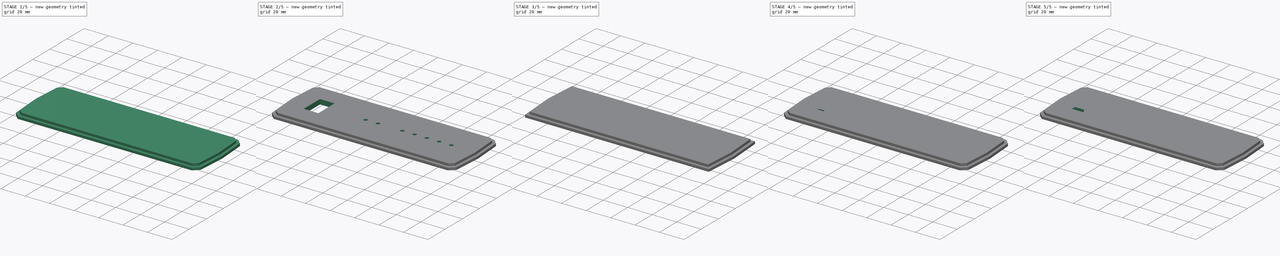
[diagram: build sequence overview — one tinted view per stage of 5, left to right]
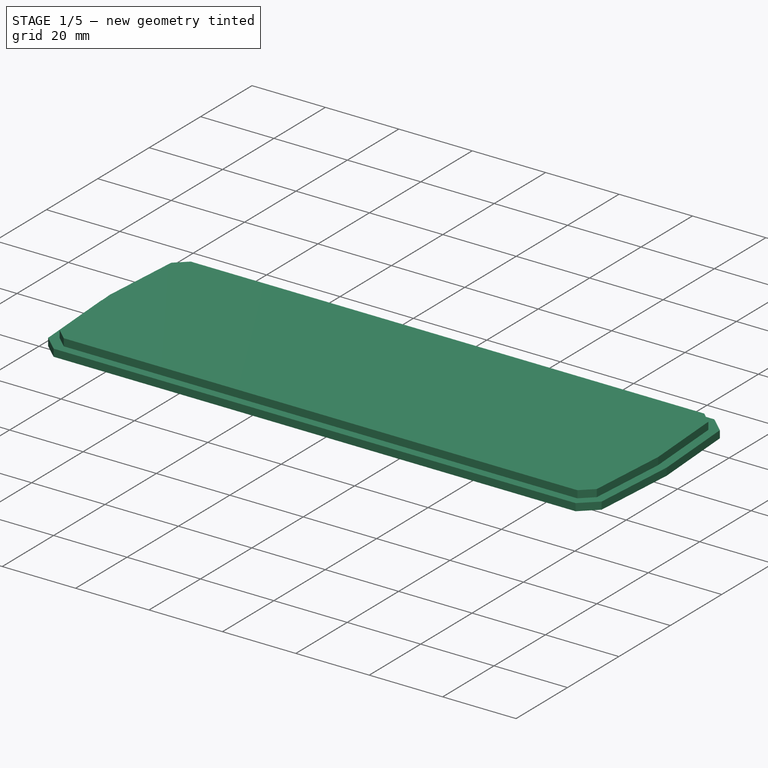
[diagram: stage 1 of 5 — iso view after this stage's code; geometry added in this stage tinted green]
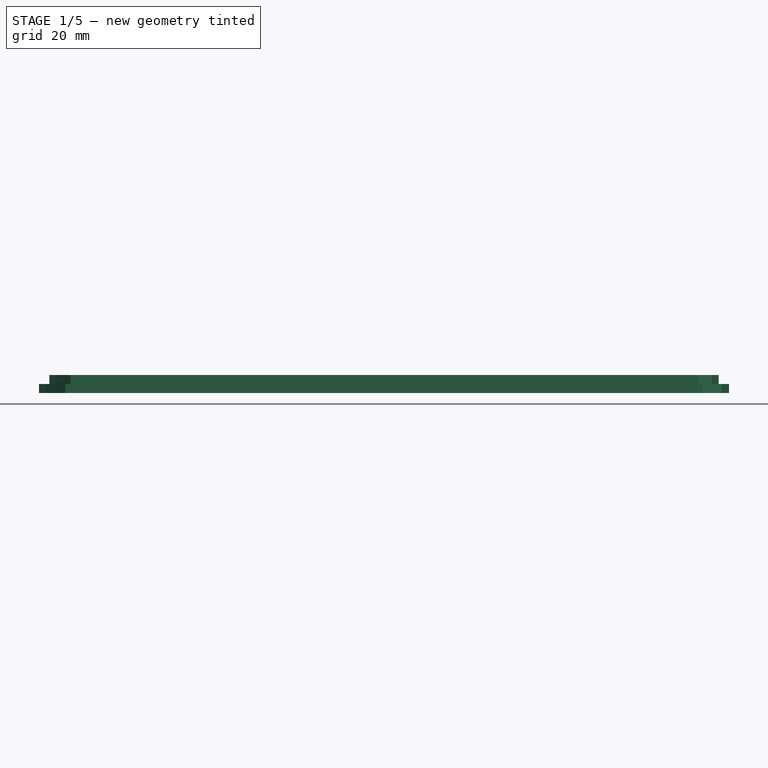
[diagram: stage 1 of 5 — front view after this stage's code; geometry added in this stage tinted green]
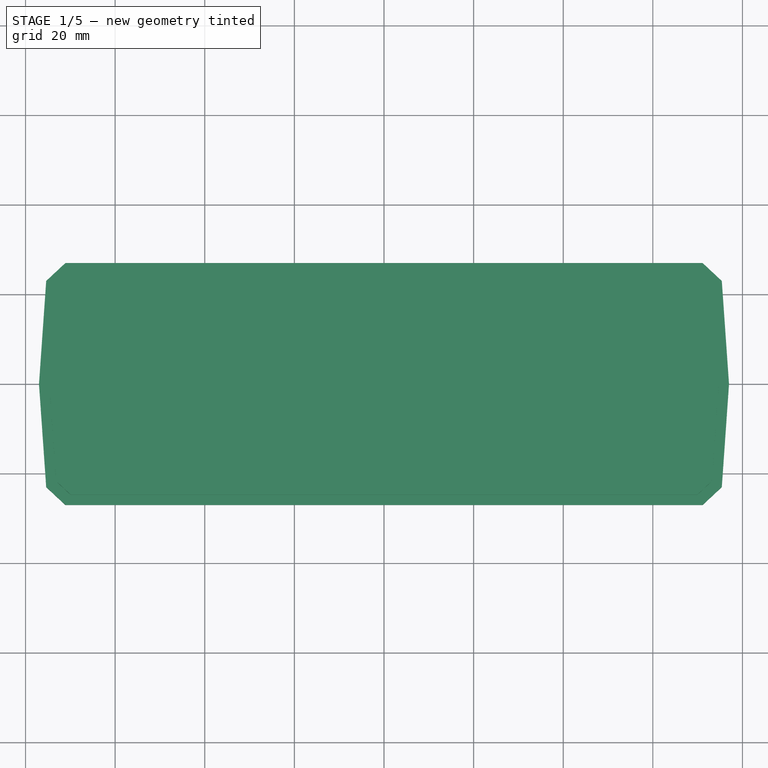
[diagram: stage 1 of 5 — top view after this stage's code; geometry added in this stage tinted green]
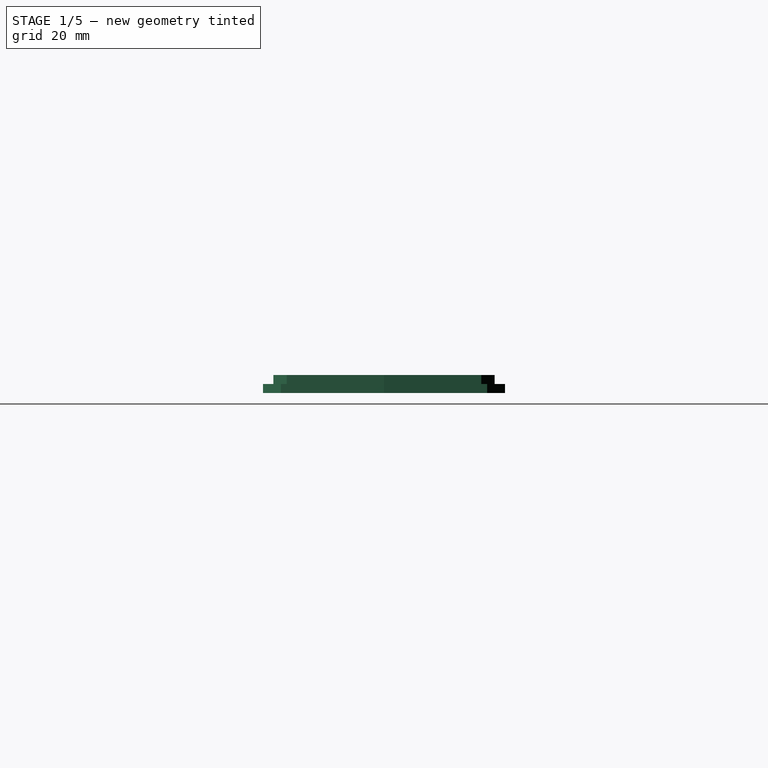
[diagram: stage 1 of 5 — right view after this stage's code; geometry added in this stage tinted green]
FCSTD DOCUMENT  (FreeCAD 1.1R20260414 (Git shallow))
Label: panel_sequencer
License: All rights reserved
LicenseURL: https://en.wikipedia.org/wiki/All_rights_reserved
objects: Sketcher::SketchObject×13, PartDesign::Pocket×11, PartDesign::LinearPattern×5, PartDesign::Chamfer×4, App::Point×2, PartDesign::Pad×2, PartDesign::Body×2, App::VarSet×1, PartDesign::Plane×1
note: 90 computed .brp shape members not serialized (recipe doc carries the construction recipe); baked Part::Feature solids carry a one-line shape summary decoded from their .brp

FEATURE [App::Point] Origin001  label="Počátek"
  Role = Origin
FEATURE [Sketcher::SketchObject] Sketch
  ArcFitTolerance = 1e-06
  AttachmentSupport = -> [Origin]
  ExternalTypes = [0]
  FullyConstrained = true
  MakeInternals = false
  MapMode = 5
  _ExternalGeoVersion = 1
  sketch-geometry (6):
    g0: LineSegment StartX=-77 StartY=0 StartZ=0 EndX=-75.112 EndY=27 EndZ=0
    g1: LineSegment StartX=-75.112 StartY=27 StartZ=0 EndX=75.112 EndY=27 EndZ=0
    g2: LineSegment StartX=75.112 StartY=27 StartZ=0 EndX=77 EndY=0 EndZ=0
    g3: LineSegment StartX=77 StartY=0 StartZ=0 EndX=75.112 EndY=-27 EndZ=0
    g4: LineSegment StartX=75.112 StartY=-27 StartZ=0 EndX=-75.112 EndY=-27 EndZ=0
    g5: LineSegment StartX=-75.112 StartY=-27 StartZ=0 EndX=-77 EndY=0 EndZ=0
  constraints (16):
    c: PointOnObject(g0,g-1)
    c: Coincident(g0,g1)
    c: Coincident(g1,g2)
    c: Coincident(g2,g3)
    c: Coincident(g3,g4)
    c: Horizontal(g4)
    c: Coincident(g4,g5)
    c: Coincident(g5,g0)
    c: Equal(g1,g4)
    c: Symmetric(g0,g1,g-2)
    c: Symmetric(g0,g2,g-2)
    c: Vertical(g0,g4)
    c: Equal(g0,g5)
    c: Distance(g4,g1) = 54
    c: DistanceX(g0,g2) = 154
    c: Angle(g-1,g0) = 1.50098
FEATURE [PartDesign::Pad] Pad
  Direction = (0,0,1)
  Length = 4
  Length2 = 10
  Profile = -> Sketch
  ReferenceAxis = -> Sketch [N_Axis]
  Refine = true
  SideType = 0
  Suppressed = false
  Type = 0
  Type2 = 0
FEATURE [Sketcher::SketchObject] Sketch001
  ArcFitTolerance = 1e-06
  AttachmentSupport = -> [Pad]
  ExternalGeometry = -> [Pad]
  ExternalTypes = [0,0,0,0,0,0]
  FullyConstrained = false
  MakeInternals = false
  MapMode = 5
  Placement = pos=(0,0,4) rot=(0,0,1;0rad)
  _ExternalGeoVersion = 1
  sketch-geometry (12):
    g0: LineSegment StartX=-72.9672 StartY=24.7 StartZ=0 EndX=72.9672 EndY=24.7 EndZ=0
    g1: LineSegment StartX=72.9672 StartY=24.7 StartZ=0 EndX=74.6944 EndY=4.62e-14 EndZ=0
    g2: LineSegment StartX=74.6944 StartY=4.62e-14 StartZ=0 EndX=72.9672 EndY=-24.7 EndZ=0
    g3: LineSegment StartX=72.9672 StartY=-24.7 StartZ=0 EndX=-72.9672 EndY=-24.7 EndZ=0
    g4: LineSegment StartX=-72.9672 StartY=-24.7 StartZ=0 EndX=-74.6944 EndY=3.2e-14 EndZ=0
    g5: LineSegment StartX=-74.6944 StartY=3.2e-14 StartZ=0 EndX=-72.9672 EndY=24.7 EndZ=0
    g6: LineSegment [constr] StartX=-71.6499 StartY=24.7 StartZ=0 EndX=-71.6499 EndY=27 EndZ=0
    g7: LineSegment [constr] StartX=72.9661 StartY=24.7158 StartZ=0 EndX=75.2605 EndY=24.8763 EndZ=0
    g8: LineSegment [constr] StartX=74.6856 StartY=-0.125518 StartZ=0 EndX=76.98 EndY=-0.285958 EndZ=0
    g9: LineSegment [constr] StartX=71.6499 StartY=-24.7 StartZ=0 EndX=71.6499 EndY=-27 EndZ=0
    g10: LineSegment [constr] StartX=-72.9661 StartY=-24.7158 StartZ=0 EndX=-75.2605 EndY=-24.8763 EndZ=0
    g11: LineSegment [constr] StartX=-74.6856 StartY=0.125522 StartZ=0 EndX=-76.98 EndY=0.285962 EndZ=0
  constraints (36):
    c: Coincident(g0,g1)
    c: Coincident(g0,g5)
    c: Coincident(g1,g2)
    c: Coincident(g2,g3)
    c: Coincident(g3,g4)
    c: Coincident(g4,g5)
    c: Perpendicular(g6,g0)
    c: PointOnObject(g6,g0)
    c: PointOnObject(g6,g-3)
    c: Perpendicular(g7,g1)
    c: PointOnObject(g7,g1)
    c: PointOnObject(g7,g-4)
    c: Perpendicular(g8,g2)
    c: PointOnObject(g8,g2)
    c: PointOnObject(g8,g-5)
    c: Perpendicular(g9,g3)
    c: PointOnObject(g9,g3)
    c: PointOnObject(g9,g-6)
    c: Perpendicular(g10,g4)
    c: PointOnObject(g10,g4)
    c: PointOnObject(g10,g-7)
    c: Perpendicular(g11,g5)
    c: PointOnObject(g11,g5)
    c: PointOnObject(g11,g-8)
    c: Parallel(g5,g-8)
    c: Parallel(g0,g-3)
    c: Parallel(g1,g-4)
    c: Equal(g7,g6)
    c: Parallel(g2,g-5)
    c: Equal(g8,g6)
    c: Parallel(g3,g-6)
    c: Equal(g9,g6)
    c: Parallel(g4,g-7)
    c: Equal(g10,g6)
    c: Equal(g11,g6)
    c: Distance(g6) = 2.3
FEATURE [PartDesign::Pocket] Pocket
  BaseFeature = -> Pad
  Direction = (0,0,-1)
  Length = 2
  Length2 = 5
  Profile = -> Sketch001
  ReferenceAxis = -> Sketch001 [N_Axis]
  Refine = true
  SideType = 0
  Suppressed = false
  Type = 0
  Type2 = 0
FEATURE [PartDesign::Chamfer] Chamfer
  Angle = 45
  Base = -> Pocket [Edge32,Edge25,Edge26,Edge30]
  BaseFeature = -> Pocket
  ChamferType = 0
  FlipDirection = false
  Refine = true
  Size = 3
  Size2 = 1
  SupportTransform = false
  Suppressed = false
  UseAllEdges = false
FEATURE [PartDesign::Chamfer] Chamfer001
  Angle = 45
  Base = -> Chamfer [Edge43,Edge38,Edge39,Edge45]
  BaseFeature = -> Chamfer
  ChamferType = 0
  FlipDirection = false
  Refine = true
  Size = 4
  Size2 = 1
  SupportTransform = false
  Suppressed = false
  UseAllEdges = false
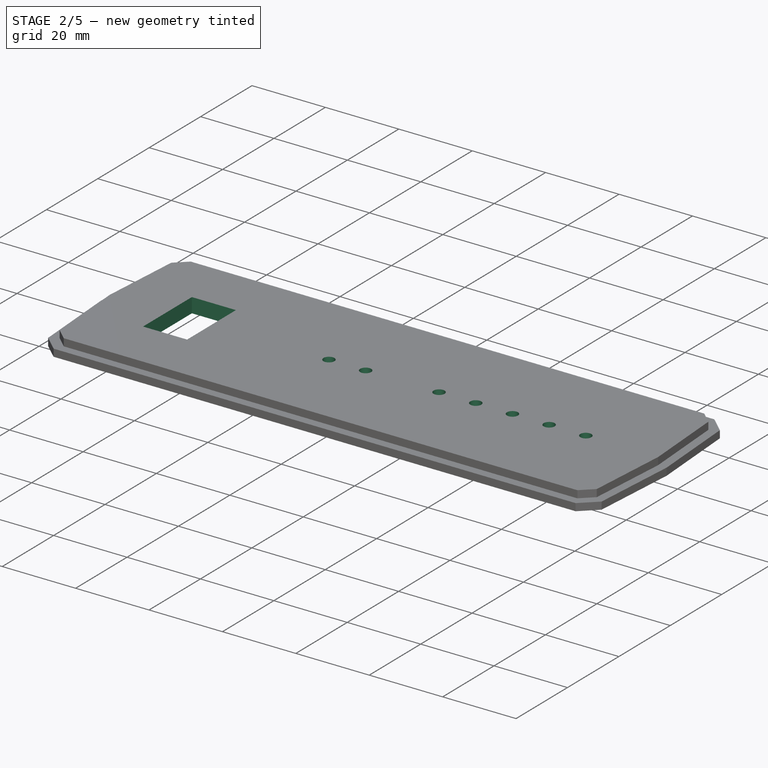
[diagram: stage 2 of 5 — iso view after this stage's code; geometry added in this stage tinted green]
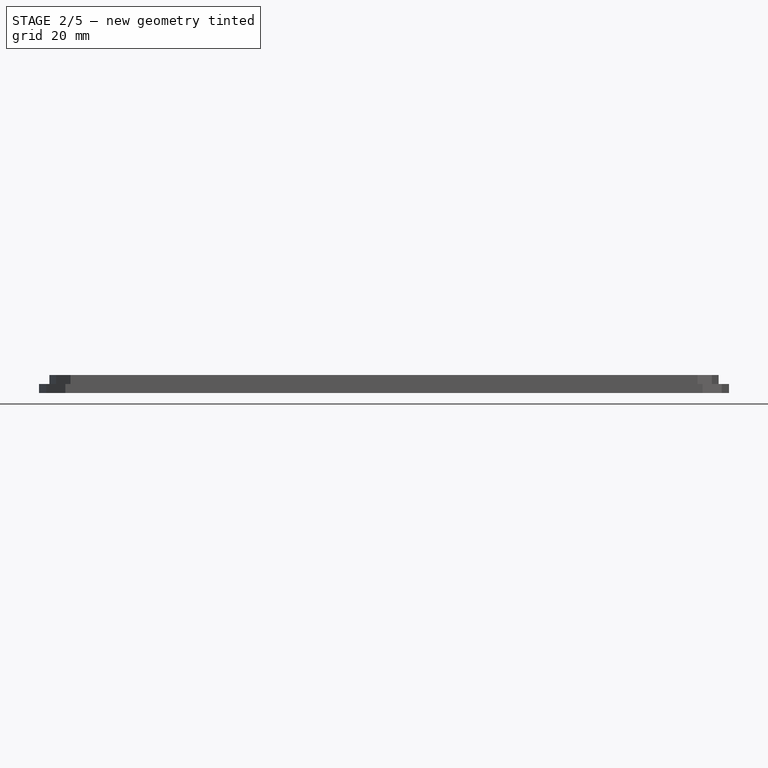
[diagram: stage 2 of 5 — front view after this stage's code; geometry added in this stage tinted green]
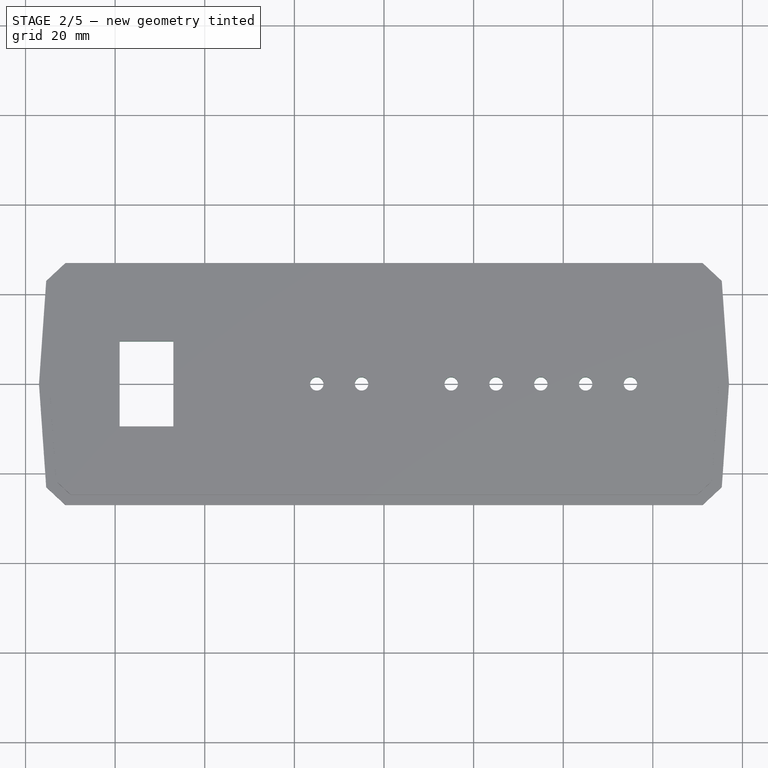
[diagram: stage 2 of 5 — top view after this stage's code; geometry added in this stage tinted green]
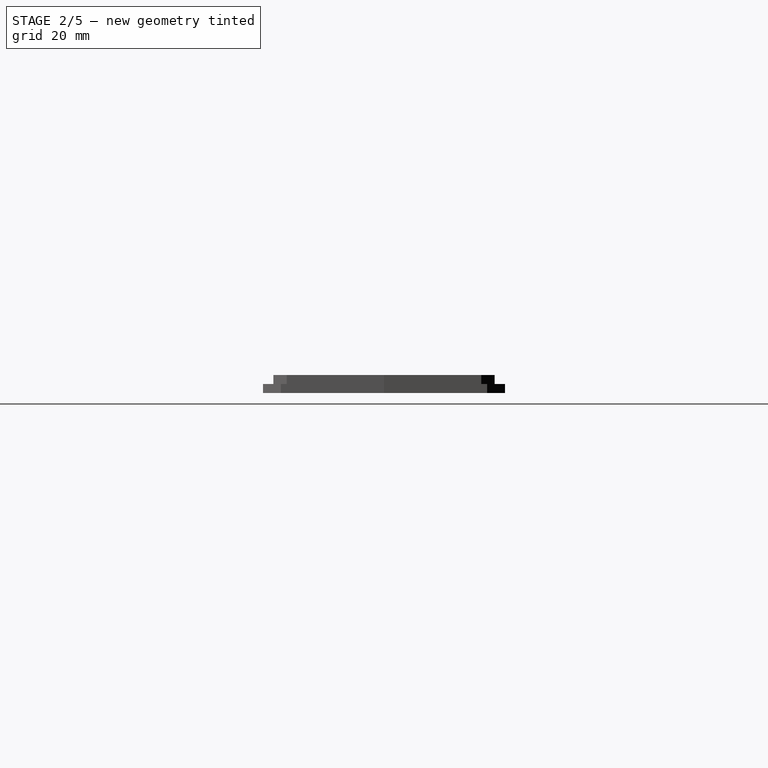
[diagram: stage 2 of 5 — right view after this stage's code; geometry added in this stage tinted green]
FEATURE [Sketcher::SketchObject] Sketch004
  ArcFitTolerance = 1e-06
  AttachmentSupport = -> [Chamfer001]
  ExternalGeometry = -> [Chamfer001]
  ExternalTypes = [0,0]
  FullyConstrained = true
  MakeInternals = false
  MapMode = 5
  Placement = pos=(0,0,4) rot=(0,0,1;0rad)
  _ExternalGeoVersion = 1
  sketch-geometry (4):
    g0: LineSegment StartX=-59 StartY=9.5 StartZ=0 EndX=-59 EndY=-9.5 EndZ=0
    g1: LineSegment StartX=-59 StartY=-9.5 StartZ=0 EndX=-47 EndY=-9.5 EndZ=0
    g2: LineSegment StartX=-47 StartY=-9.5 StartZ=0 EndX=-47 EndY=9.5 EndZ=0
    g3: LineSegment StartX=-47 StartY=9.5 StartZ=0 EndX=-59 EndY=9.5 EndZ=0
  constraints (11):
    c: Coincident(g0,g1)
    c: Coincident(g1,g2)
    c: Coincident(g2,g3)
    c: Coincident(g3,g0)
    c: Vertical(g0)
    c: Horizontal(g1)
    c: Horizontal(g3)
    c: Distance(g0,g2) = 12
    c: Distance(g1,g3) = 19
    c: Distance(g-3,g0) = 18
    c: Symmetric(g2,g1,g-1)
FEATURE [PartDesign::Pocket] Pocket002  label="vypinac"
  BaseFeature = -> Chamfer001
  Direction = (0,0,-1)
  Length = 5
  Length2 = 5
  Profile = -> Sketch004
  ReferenceAxis = -> Sketch004 [N_Axis]
  Refine = true
  SideType = 0
  Suppressed = false
  Type = 0
  Type2 = 0
FEATURE [Sketcher::SketchObject] Sketch005
  ArcFitTolerance = 1e-06
  AttachmentSupport = -> [Pocket002]
  ExternalGeometry = -> [Pocket002]
  ExternalTypes = [0]
  FullyConstrained = true
  MakeInternals = false
  MapMode = 5
  Placement = pos=(0,0,4) rot=(0,0,1;0rad)
  _ExternalGeoVersion = 1
  sketch-geometry (1):
    g0: Circle CenterX=55 CenterY=0 CenterZ=0 NormalX=0 NormalY=0 NormalZ=1 AngleXU=0 Radius=1.5
  constraints (3):
    c: Diameter(g0) = 3
    c: PointOnObject(g0,g-1)
    c: DistanceX(g0,g-3) = 22
FEATURE [PartDesign::Pocket] Pocket003  label="led TX"
  BaseFeature = -> Pocket002
  Direction = (0,0,-1)
  Length = 5
  Length2 = 5
  Profile = -> Sketch005
  ReferenceAxis = -> Sketch005 [N_Axis]
  Refine = true
  SideType = 0
  Suppressed = false
  Type = 0
  Type2 = 0
FEATURE [PartDesign::LinearPattern] LinearPattern
  BaseFeature = -> Pocket003
  Direction = -> X_Axis
  Direction2 = -> X_Axis
  Length = 40
  Length2 = 100
  Mode = 1
  Mode2 = 0
  Occurrences = 5
  Occurrences2 = 1
  Offset = 10
  Offset2 = 100
  Originals = -> [Pocket003]
  Refine = true
  Reversed = true
  Reversed2 = false
  SpacingPattern = [10]
  SpacingPattern2 = [0]
  Spacings = [-1,-1,-1,-1]
  Suppressed = false
  TransformMode = 0
FEATURE [Sketcher::SketchObject] Sketch006
  ArcFitTolerance = 1e-06
  AttachmentSupport = -> [LinearPattern]
  ExternalTypes = [0]
  FullyConstrained = true
  MakeInternals = false
  MapMode = 5
  Placement = pos=(0,0,4) rot=(0,0,1;0rad)
  _ExternalGeoVersion = 1
  sketch-geometry (1):
    g0: Circle CenterX=-5 CenterY=0 CenterZ=0 NormalX=0 NormalY=0 NormalZ=1 AngleXU=0 Radius=1.5
  constraints (3):
    c: Diameter(g0) = 3
    c: PointOnObject(g0,g-1)
    c: DistanceX(g0,g-1) = 5
FEATURE [PartDesign::Pocket] Pocket004  label="led LNA"
  BaseFeature = -> LinearPattern
  Direction = (0,0,-1)
  Length = 5
  Length2 = 5
  Profile = -> Sketch006
  ReferenceAxis = -> Sketch006 [N_Axis]
  Refine = true
  SideType = 0
  Suppressed = false
  Type = 0
  Type2 = 0
FEATURE [PartDesign::LinearPattern] LinearPattern001
  BaseFeature = -> Pocket004
  Direction = -> X_Axis
  Direction2 = -> X_Axis
  Length = 10
  Length2 = 100
  Mode = 1
  Mode2 = 0
  Occurrences = 2
  Occurrences2 = 1
  Offset = 10
  Offset2 = 100
  Originals = -> [Pocket004]
  Refine = true
  Reversed = true
  Reversed2 = false
  SpacingPattern = [10]
  SpacingPattern2 = [0]
  Spacings = [-1]
  Suppressed = false
  TransformMode = 0
  expr: Occurrences = VarSet.LNA
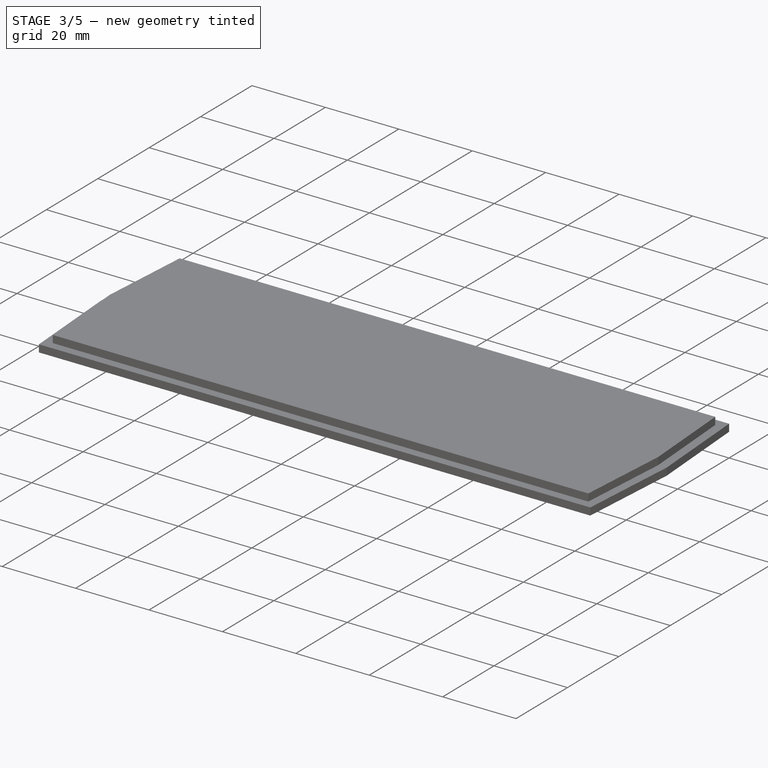
[diagram: stage 3 of 5 — iso view after this stage's code; geometry added in this stage tinted green]
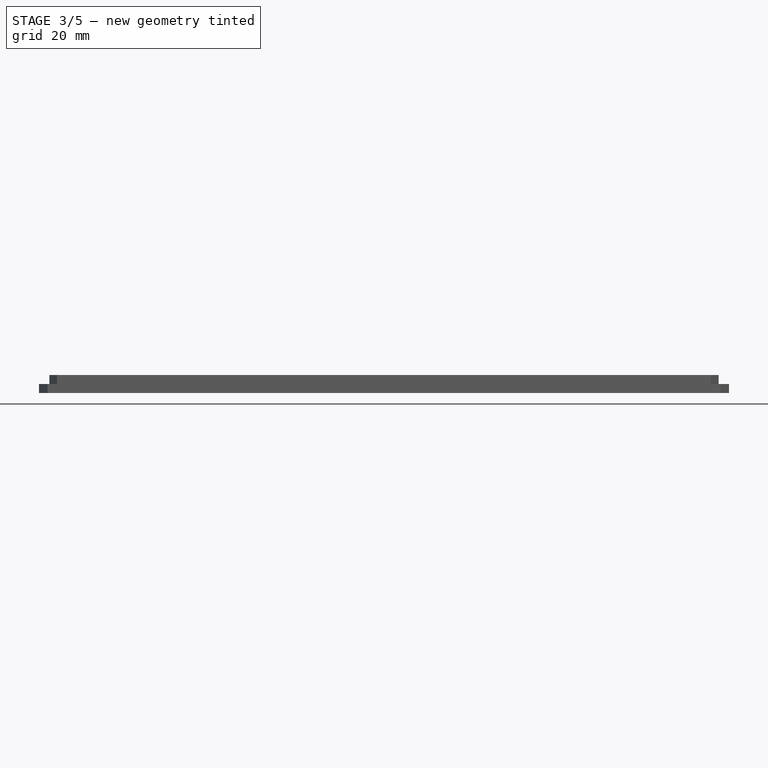
[diagram: stage 3 of 5 — front view after this stage's code; geometry added in this stage tinted green]
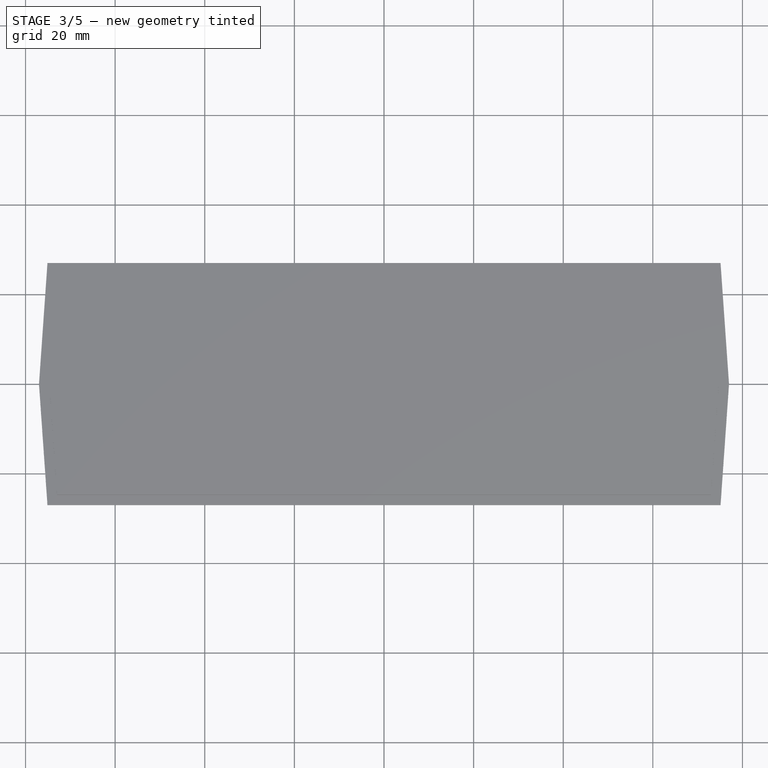
[diagram: stage 3 of 5 — top view after this stage's code; geometry added in this stage tinted green]
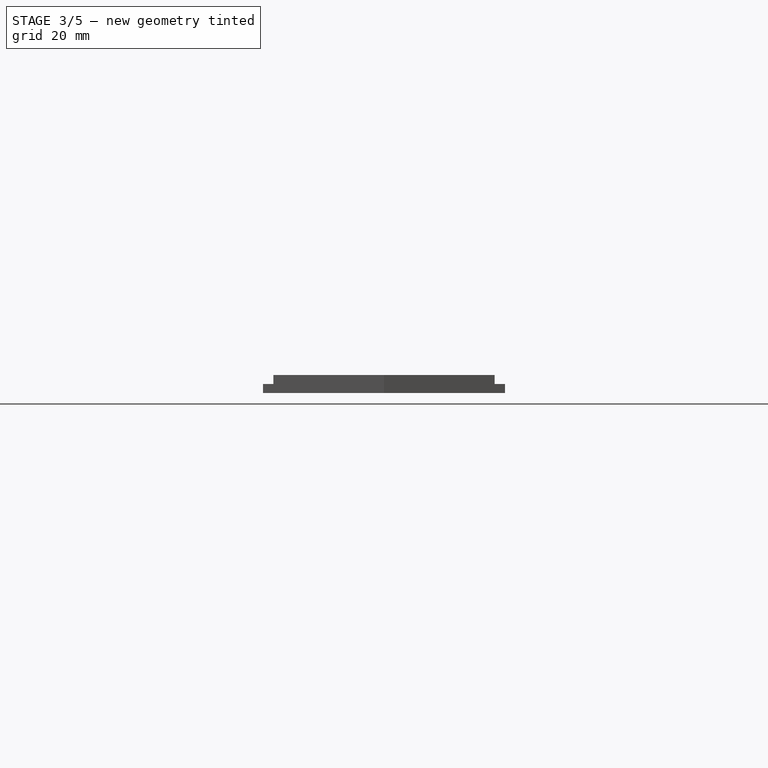
[diagram: stage 3 of 5 — right view after this stage's code; geometry added in this stage tinted green]
FEATURE [App::Point] Origin003  label="Počátek003"
  Role = Origin
FEATURE [Sketcher::SketchObject] Sketch002
  ArcFitTolerance = 1e-06
  AttachmentSupport = -> [Origin002]
  ExternalTypes = [0]
  FullyConstrained = true
  MakeInternals = false
  MapMode = 5
  _ExternalGeoVersion = 1
  sketch-geometry (6):
    g0: LineSegment StartX=-77 StartY=0 StartZ=0 EndX=-75.112 EndY=27 EndZ=0
    g1: LineSegment StartX=-75.112 StartY=27 StartZ=0 EndX=75.112 EndY=27 EndZ=0
    g2: LineSegment StartX=75.112 StartY=27 StartZ=0 EndX=77 EndY=0 EndZ=0
    g3: LineSegment StartX=77 StartY=0 StartZ=0 EndX=75.112 EndY=-27 EndZ=0
    g4: LineSegment StartX=75.112 StartY=-27 StartZ=0 EndX=-75.112 EndY=-27 EndZ=0
    g5: LineSegment StartX=-75.112 StartY=-27 StartZ=0 EndX=-77 EndY=0 EndZ=0
  constraints (16):
    c: PointOnObject(g0,g-1)
    c: Coincident(g0,g1)
    c: Coincident(g1,g2)
    c: Coincident(g2,g3)
    c: Coincident(g3,g4)
    c: Horizontal(g4)
    c: Coincident(g4,g5)
    c: Coincident(g5,g0)
    c: Equal(g1,g4)
    c: Symmetric(g0,g1,g-2)
    c: Symmetric(g0,g2,g-2)
    c: Vertical(g0,g4)
    c: Equal(g0,g5)
    c: Distance(g4,g1) = 54
    c: DistanceX(g0,g2) = 154
    c: Angle(g-1,g0) = 1.50098
FEATURE [PartDesign::Pad] Pad001
  Direction = (0,0,1)
  Length = 4
  Length2 = 10
  Profile = -> Sketch002
  ReferenceAxis = -> Sketch002 [N_Axis]
  Refine = true
  SideType = 0
  Suppressed = false
  Type = 0
  Type2 = 0
FEATURE [Sketcher::SketchObject] Sketch003
  ArcFitTolerance = 1e-06
  AttachmentSupport = -> [Pad001]
  ExternalGeometry = -> [Pad001]
  ExternalTypes = [0,0,0,0,0,0]
  FullyConstrained = false
  MakeInternals = false
  MapMode = 5
  Placement = pos=(0,0,4) rot=(0,0,1;0rad)
  _ExternalGeoVersion = 1
  sketch-geometry (12):
    g0: LineSegment StartX=-72.9672 StartY=24.7 StartZ=0 EndX=72.9672 EndY=24.7 EndZ=0
    g1: LineSegment StartX=72.9672 StartY=24.7 StartZ=0 EndX=74.6944 EndY=-2.65672e-11 EndZ=0
    g2: LineSegment StartX=74.6944 StartY=-2.65672e-11 StartZ=0 EndX=72.9672 EndY=-24.7 EndZ=0
    g3: LineSegment StartX=72.9672 StartY=-24.7 StartZ=0 EndX=-72.9672 EndY=-24.7 EndZ=0
    g4: LineSegment StartX=-72.9672 StartY=-24.7 StartZ=0 EndX=-74.6944 EndY=2.63931e-11 EndZ=0
    g5: LineSegment StartX=-74.6944 StartY=2.63931e-11 StartZ=0 EndX=-72.9672 EndY=24.7 EndZ=0
    g6: LineSegment [constr] StartX=-71.6499 StartY=24.7 StartZ=0 EndX=-71.6499 EndY=27 EndZ=0
    g7: LineSegment [constr] StartX=72.9663 StartY=24.7123 StartZ=0 EndX=75.2607 EndY=24.8728 EndZ=0
    g8: LineSegment [constr] StartX=74.6856 StartY=-0.125095 StartZ=0 EndX=76.98 EndY=-0.285535 EndZ=0
    g9: LineSegment [constr] StartX=71.6499 StartY=-24.7 StartZ=0 EndX=71.6499 EndY=-27 EndZ=0
    g10: LineSegment [constr] StartX=-72.9668 StartY=-24.7051 StartZ=0 EndX=-75.2612 EndY=-24.8655 EndZ=0
    g11: LineSegment [constr] StartX=-74.6855 StartY=0.126875 StartZ=0 EndX=-76.9799 EndY=0.287315 EndZ=0
  constraints (36):
    c: Coincident(g0,g1)
    c: Coincident(g0,g5)
    c: Coincident(g1,g2)
    c: Coincident(g2,g3)
    c: Coincident(g3,g4)
    c: Coincident(g4,g5)
    c: Perpendicular(g6,g0)
    c: PointOnObject(g6,g0)
    c: PointOnObject(g6,g-3)
    c: Perpendicular(g7,g1)
    c: PointOnObject(g7,g1)
    c: PointOnObject(g7,g-4)
    c: Perpendicular(g8,g2)
    c: PointOnObject(g8,g2)
    c: PointOnObject(g8,g-5)
    c: Perpendicular(g9,g3)
    c: PointOnObject(g9,g3)
    c: PointOnObject(g9,g-6)
    c: Perpendicular(g10,g4)
    c: PointOnObject(g10,g4)
    c: PointOnObject(g10,g-7)
    c: Perpendicular(g11,g5)
    c: PointOnObject(g11,g5)
    c: PointOnObject(g11,g-8)
    c: Parallel(g5,g-8)
    c: Parallel(g0,g-3)
    c: Parallel(g1,g-4)
    c: Equal(g7,g6)
    c: Parallel(g2,g-5)
    c: Equal(g8,g6)
    c: Parallel(g3,g-6)
    c: Equal(g9,g6)
    c: Parallel(g4,g-7)
    c: Equal(g10,g6)
    c: Equal(g11,g6)
    c: Distance(g6) = 2.3
FEATURE [PartDesign::Pocket] Pocket001
  BaseFeature = -> Pad001
  Direction = (0,0,-1)
  Length = 2
  Length2 = 5
  Profile = -> Sketch003
  ReferenceAxis = -> Sketch003 [N_Axis]
  Refine = true
  SideType = 0
  Suppressed = false
  Type = 0
  Type2 = 0
FEATURE [Sketcher::SketchObject] Sketch011
  ArcFitTolerance = 1e-06
  AttachmentSupport = -> [LinearPattern001]
  ExternalGeometry = -> [LinearPattern001]
  ExternalTypes = [0]
  FullyConstrained = true
  MakeInternals = false
  MapMode = 5
  Placement = pos=(0,0,4) rot=(0,0,1;0rad)
  _ExternalGeoVersion = 1
  sketch-geometry (2):
    g0: Circle CenterX=-53 CenterY=17.5 CenterZ=0 NormalX=0 NormalY=0 NormalZ=1 AngleXU=0 Radius=1.5
    g1: LineSegment [constr] StartX=-53 StartY=17.5 StartZ=0 EndX=-53 EndY=9.5 EndZ=0
  constraints (5):
    c: Diameter(g0) = 3
    c: Coincident(g1,g0)
    c: Symmetric(g-3,g-3,g1)
    c: Vertical(g1)
    c: DistanceY(g1,g1) = 8
FEATURE [PartDesign::Pocket] Pocket009  label="led PWR"
  BaseFeature = -> LinearPattern001
  Direction = (0,0,-1)
  Length = 5
  Length2 = 5
  Profile = -> Sketch011
  ReferenceAxis = -> Sketch011 [N_Axis]
  Refine = true
  SideType = 0
  Suppressed = false
  Type = 0
  Type2 = 0
FEATURE [App::VarSet] VarSet
  DC = 2
  LNA = 2
FEATURE [PartDesign::Plane] DatumPlane
  AttachmentOffset = pos=(0,0,6) rot=(0,0,1;0rad)
  AttachmentSupport = -> [Pocket009]
  Length = 64.3923
  MapMode = 5
  Placement = pos=(-53,0,0) rot=(0.57735,-0.57735,-0.57735;2.0944rad)
  ResizeMode = 0
  Width = 60.3923
FEATURE [Sketcher::SketchObject] Sketch015
  ArcFitTolerance = 1e-06
  AttachmentSupport = -> [DatumPlane]
  ExternalGeometry = -> [Pocket009]
  ExternalTypes = [0]
  FullyConstrained = true
  MakeInternals = false
  MapMode = 5
  Placement = pos=(-53,0,0) rot=(0.57735,-0.57735,-0.57735;2.0944rad)
  _ExternalGeoVersion = 1
  sketch-geometry (8):
    g0: LineSegment StartX=-9.5 StartY=0 StartZ=0 EndX=-9.5 EndY=3 EndZ=0
    g1: LineSegment StartX=-9.5 StartY=3 StartZ=0 EndX=-10.75 EndY=1.75 EndZ=0
    g2: LineSegment StartX=-10.75 StartY=1.75 StartZ=0 EndX=-10.75 EndY=0 EndZ=0
    g3: LineSegment StartX=-10.75 StartY=0 StartZ=0 EndX=-9.5 EndY=0 EndZ=0
    g4: LineSegment StartX=9.5 StartY=0 StartZ=0 EndX=9.5 EndY=3 EndZ=0
    g5: LineSegment StartX=9.5 StartY=3 StartZ=0 EndX=10.75 EndY=1.75 EndZ=0
    g6: LineSegment StartX=10.75 StartY=1.75 StartZ=0 EndX=10.75 EndY=0 EndZ=0
    g7: LineSegment StartX=10.75 StartY=0 StartZ=0 EndX=9.5 EndY=0 EndZ=0
  constraints (19):
    c: Coincident(g-3,g0)
    c: PointOnObject(g0,g-3)
    c: Coincident(g0,g1)
    c: Coincident(g1,g2)
    c: PointOnObject(g2,g-1)
    c: Vertical(g2)
    c: Coincident(g2,g3)
    c: Coincident(g3,g0)
    c: Symmetric(g0,g4,g-2)
    c: Symmetric(g0,g4,g-2)
    c: Symmetric(g1,g5,g-2)
    c: Symmetric(g1,g5,g-2)
    c: Symmetric(g2,g6,g-2)
    c: Symmetric(g2,g6,g-2)
    c: Symmetric(g3,g7,g-2)
    c: Symmetric(g3,g7,g-2)
    c: DistanceX(g2,g6) = 21.5
    c: Distance(g0,g-3) = 1
    c: Angle(g2,g1) = 2.35619
FEATURE [PartDesign::Pocket] Pocket013
  BaseFeature = -> Pocket009
  Direction = (1,0,0)
  Length = 7
  Length2 = 5
  Profile = -> Sketch015
  ReferenceAxis = -> Sketch015 [N_Axis]
  Refine = true
  SideType = 2
  Suppressed = false
  Type = 0
  Type2 = 0
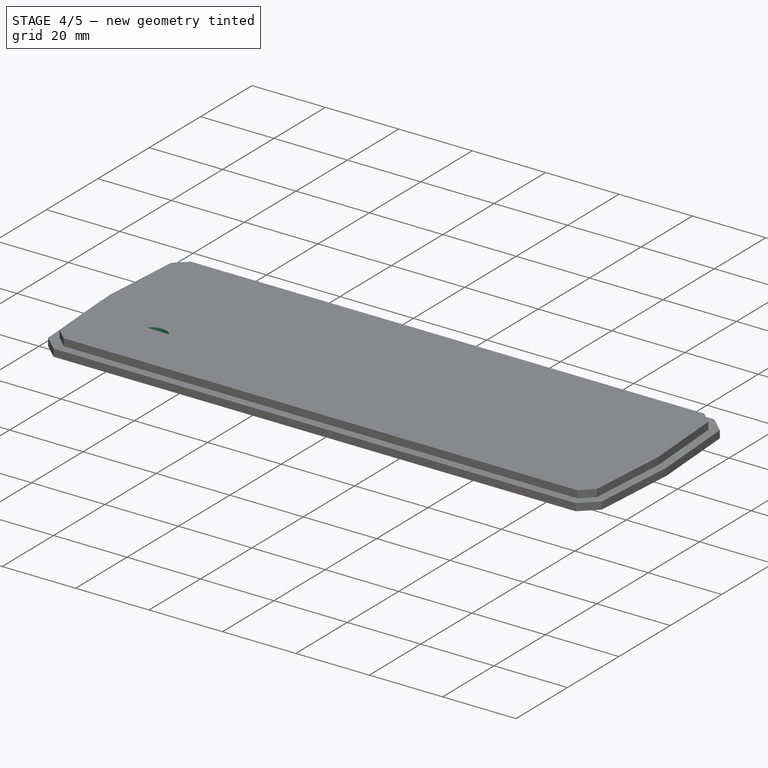
[diagram: stage 4 of 5 — iso view after this stage's code; geometry added in this stage tinted green]
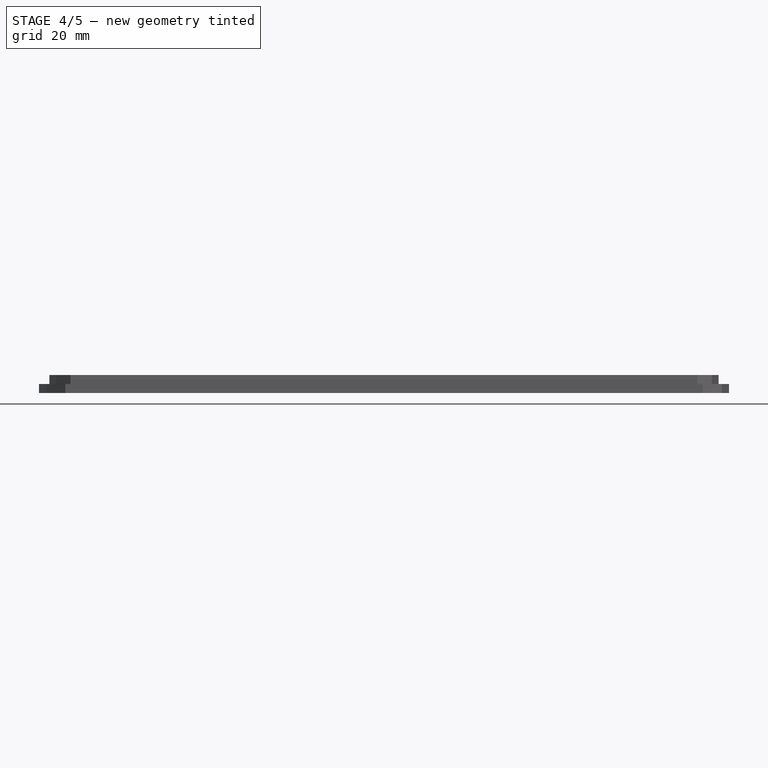
[diagram: stage 4 of 5 — front view after this stage's code; geometry added in this stage tinted green]
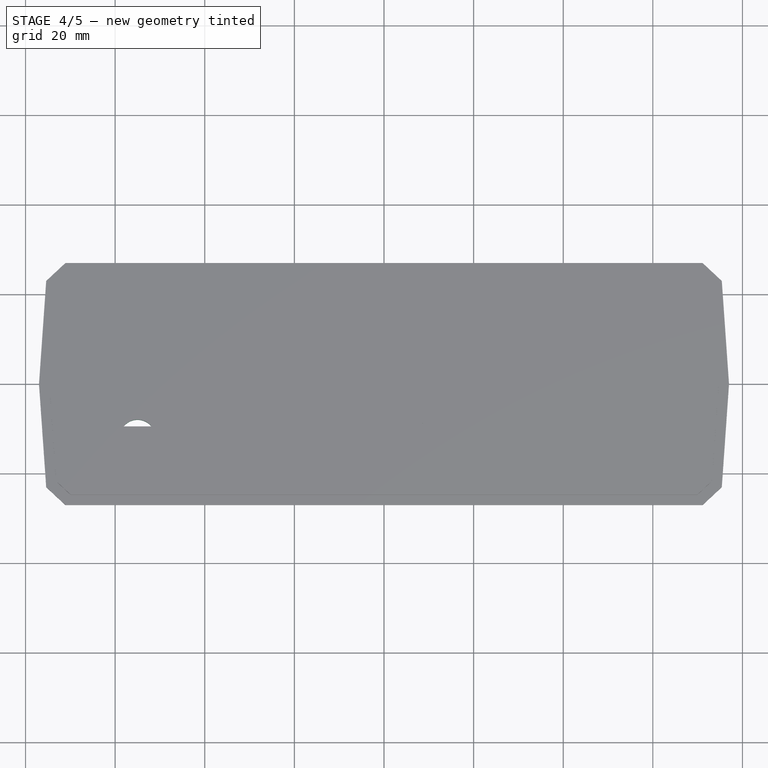
[diagram: stage 4 of 5 — top view after this stage's code; geometry added in this stage tinted green]
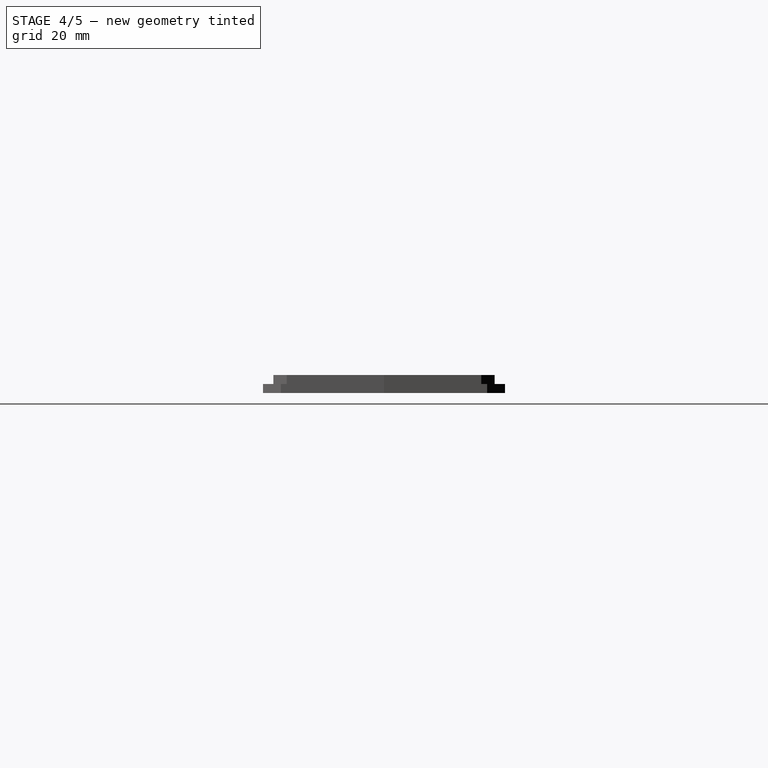
[diagram: stage 4 of 5 — right view after this stage's code; geometry added in this stage tinted green]
FEATURE [PartDesign::Chamfer] Chamfer002
  Angle = 45
  Base = -> Pocket001 [Edge32,Edge25,Edge26,Edge30]
  BaseFeature = -> Pocket001
  ChamferType = 0
  FlipDirection = false
  Refine = true
  Size = 3
  Size2 = 1
  SupportTransform = false
  Suppressed = false
  UseAllEdges = false
FEATURE [PartDesign::Chamfer] Chamfer003
  Angle = 45
  Base = -> Chamfer002 [Edge43,Edge38,Edge39,Edge45]
  BaseFeature = -> Chamfer002
  ChamferType = 0
  FlipDirection = false
  Refine = true
  Size = 4
  Size2 = 1
  SupportTransform = false
  Suppressed = false
  UseAllEdges = false
FEATURE [Sketcher::SketchObject] Sketch007
  ArcFitTolerance = 1e-06
  AttachmentSupport = -> [Chamfer003]
  ExternalGeometry = -> [Chamfer003]
  ExternalTypes = [0]
  FullyConstrained = true
  MakeInternals = false
  MapMode = 5
  Placement = pos=(0,0,4) rot=(0,0,1;0rad)
  _ExternalGeoVersion = 1
  sketch-geometry (7):
    g0: Circle CenterX=-55 CenterY=-12 CenterZ=0 NormalX=0 NormalY=0 NormalZ=1 AngleXU=0 Radius=4
    g1: GeomPoint [constr] X=-59 Y=-12 Z=0
    g2: Circle CenterX=-33 CenterY=-12 CenterZ=0 NormalX=0 NormalY=0 NormalZ=1 AngleXU=0 Radius=4
    g3: Circle CenterX=-11 CenterY=-12 CenterZ=0 NormalX=0 NormalY=0 NormalZ=1 AngleXU=0 Radius=4
    g4: Circle CenterX=11 CenterY=-12 CenterZ=0 NormalX=0 NormalY=0 NormalZ=1 AngleXU=0 Radius=4
    g5: Circle CenterX=33 CenterY=-12 CenterZ=0 NormalX=0 NormalY=0 NormalZ=1 AngleXU=0 Radius=4
    g6: Circle CenterX=55 CenterY=-12 CenterZ=0 NormalX=0 NormalY=0 NormalZ=1 AngleXU=0 Radius=4
  constraints (16):
    c: Diameter(g0) = 8
    c: PointOnObject(g1,g0)
    c: Horizontal(g0,g1)
    c: DistanceX(g-3,g1) = 18
    c: Distance(g0,g-1) = 12
    c: Equal(g0, g2-g6) x5
    c: Horizontal(g2,g1)
    c: Horizontal(g3,g1)
    c: Horizontal(g4,g1)
    c: Horizontal(g5,g1)
    c: Horizontal(g6,g1)
    c: DistanceX(g0,g2) = 22
    c: DistanceX(g2,g3) = 22
    c: DistanceX(g3,g4) = 22
    c: DistanceX(g4,g5) = 22
    c: DistanceX(g5,g6) = 22
FEATURE [PartDesign::Pocket] Pocket005  label="RCA - ( PTT )"
  BaseFeature = -> Chamfer003
  Direction = (0,0,-1)
  Length = 5
  Length2 = 5
  Profile = -> Sketch007
  ReferenceAxis = -> Sketch007 [N_Axis]
  Refine = true
  SideType = 0
  Suppressed = false
  Type = 0
  Type2 = 0
FEATURE [Sketcher::SketchObject] Sketch009
  ArcFitTolerance = 1e-06
  AttachmentSupport = -> [Pocket005]
  ExternalGeometry = -> [Pocket005]
  ExternalTypes = [0]
  FullyConstrained = true
  MakeInternals = false
  MapMode = 5
  Placement = pos=(0,0,4) rot=(0,0,1;0rad)
  _ExternalGeoVersion = 1
  sketch-geometry (5):
    g0: ArcOfCircle CenterX=-33 CenterY=-12 CenterZ=0 NormalX=0 NormalY=0 NormalZ=1 AngleXU=0 Radius=8 StartAngle=0.436469 EndAngle=2.70512
    g1: LineSegment StartX=-25.75 StartY=-8.61806 StartZ=0 EndX=-25.75 EndY=-15.3819 EndZ=0
    g2: LineSegment StartX=-40.25 StartY=-8.61806 StartZ=0 EndX=-40.25 EndY=-15.3819 EndZ=0
    g3: ArcOfCircle CenterX=-33 CenterY=-12 CenterZ=0 NormalX=0 NormalY=0 NormalZ=1 AngleXU=0 Radius=8 StartAngle=3.57806 EndAngle=5.84672
    g4: LineSegment [constr] StartX=-25.75 StartY=-12 StartZ=0 EndX=-40.25 EndY=-12 EndZ=0
  constraints (14):
    c: Vertical(g2)
    c: Equal(g2,g1)
    c: Distance(g2,g1) = 14.5
    c: Coincident(g1,g0)
    c: Coincident(g1,g3)
    c: Diameter(g0) = 16
    c: Coincident(g2,g0)
    c: Coincident(g2,g3)
    c: Coincident(g0,g3)
    c: Symmetric(g1,g1,g4)
    c: Symmetric(g2,g2,g4)
    c: Horizontal(g4)
    c: PointOnObject(g0,g4)
    c: Coincident(g0,g-3)
FEATURE [PartDesign::Pocket] Pocket007  label="GX16 - ( LNA )"
  BaseFeature = -> Pocket005
  Direction = (0,0,-1)
  Length = 5
  Length2 = 5
  Profile = -> Sketch009
  ReferenceAxis = -> Sketch009 [N_Axis]
  Refine = true
  SideType = 0
  Suppressed = false
  Type = 0
  Type2 = 0
FEATURE [PartDesign::LinearPattern] LinearPattern003
  BaseFeature = -> Pocket007
  Direction = -> Sketch009 [H_Axis]
  Direction2 = -> Sketch009 [V_Axis]
  Length = 22
  Length2 = 100
  Mode = 1
  Mode2 = 0
  Occurrences = 2
  Occurrences2 = 1
  Offset = 22
  Offset2 = 100
  Originals = -> [Pocket007]
  Refine = true
  Reversed2 = false
  SpacingPattern = [22]
  SpacingPattern2 = [0]
  Spacings = [-1]
  Suppressed = false
  TransformMode = 0
  expr: Occurrences = VarSet.LNA
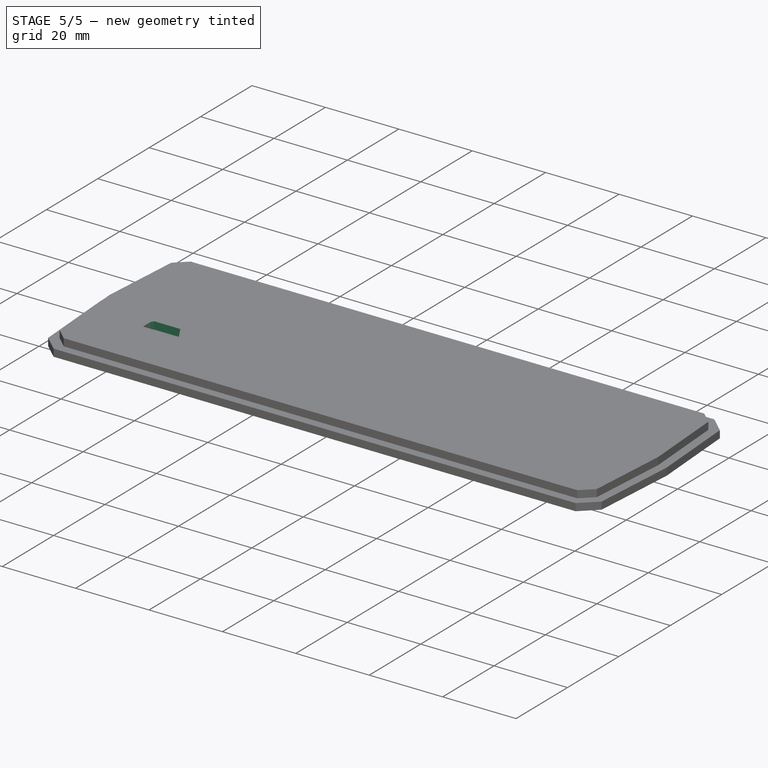
[diagram: stage 5 of 5 — iso view after this stage's code; geometry added in this stage tinted green]
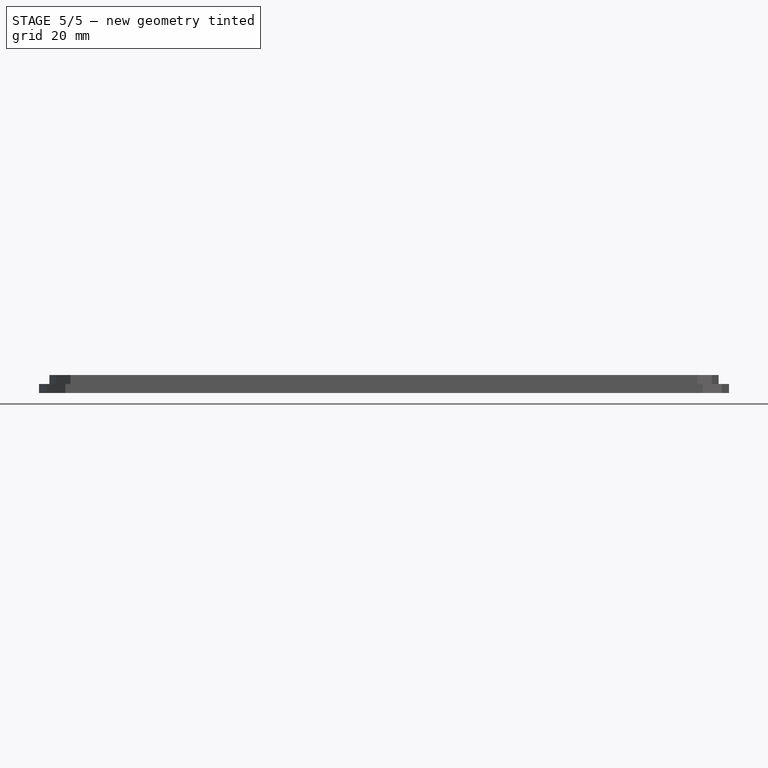
[diagram: stage 5 of 5 — front view after this stage's code; geometry added in this stage tinted green]
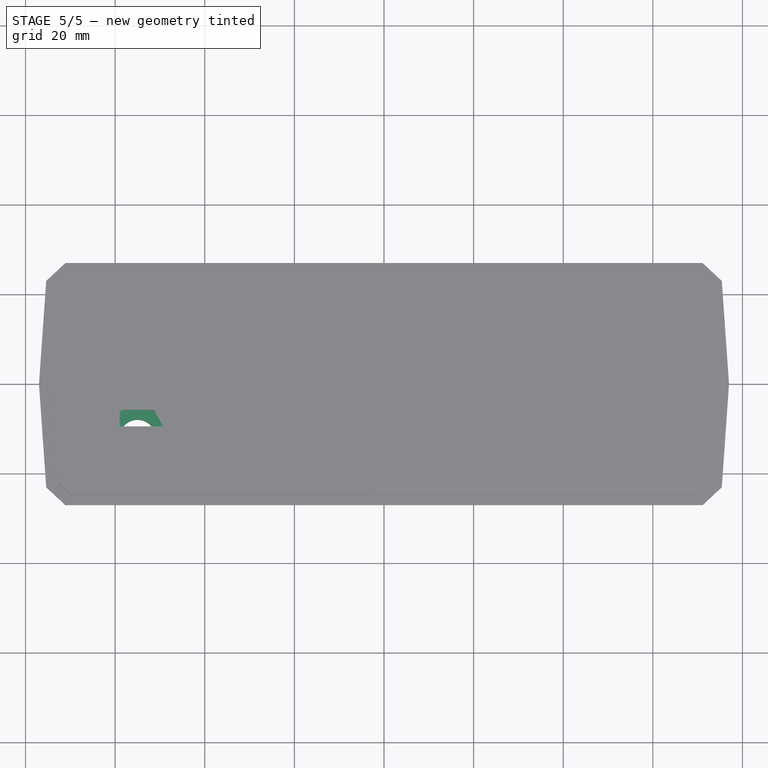
[diagram: stage 5 of 5 — top view after this stage's code; geometry added in this stage tinted green]
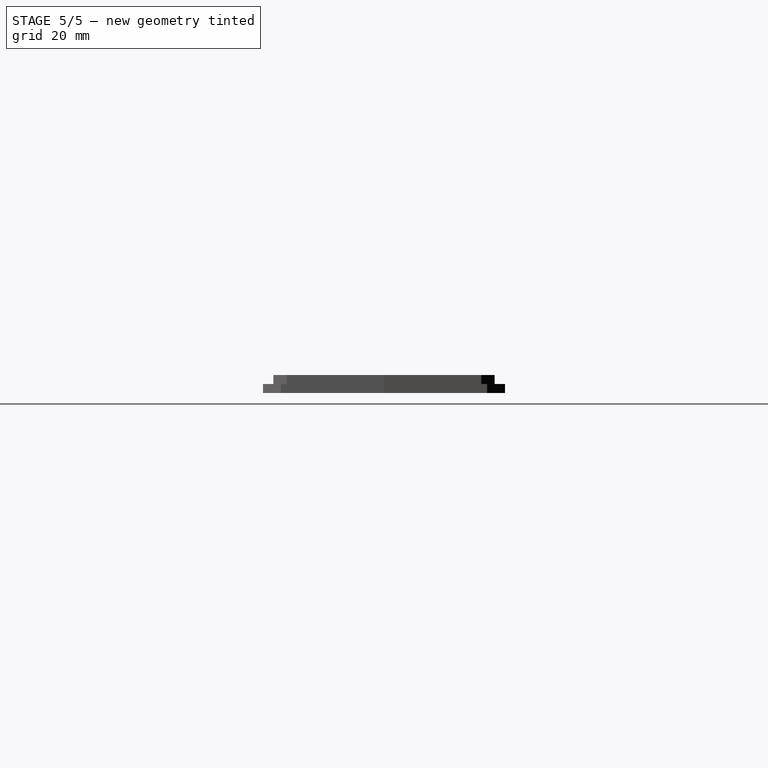
[diagram: stage 5 of 5 — right view after this stage's code; geometry added in this stage tinted green]
FEATURE [PartDesign::Body] Body  label="přední"
  AllowCompound = false
  Group = -> [Sketch,Pad,Sketch001,Pocket,Chamfer,Chamfer001,Sketch004,Pocket002,Sketch005,Pocket003,LinearPattern,Sketch006,Pocket004,LinearPattern001,Sketch011,Pocket009,DatumPlane,Sketch015,Pocket013]
  Origin = -> Origin
  Tip = -> Pocket013
FEATURE [PartDesign::Body] Body001  label="zadní"
  AllowCompound = false
  Group = -> [Sketch002,Pad001,Sketch003,Pocket001,Chamfer002,Chamfer003,Sketch007,Pocket005,Sketch009,Pocket007,LinearPattern003,Sketch012,Pocket010,LinearPattern004,Sketch014,Pocket012,LinearPattern005]
  Origin = -> Origin002
  Placement = pos=(0,-61.2,0) rot=(0,0,1;0rad)
  Tip = -> LinearPattern005
FEATURE [Sketcher::SketchObject] Sketch012
  ArcFitTolerance = 1e-06
  AttachmentSupport = -> [Pocket010]
  ExternalTypes = [0]
  FullyConstrained = true
  MakeInternals = false
  MapMode = 5
  Placement = pos=(0,0,4) rot=(0,0,1;0rad)
  _ExternalGeoVersion = 1
  sketch-geometry (7):
    g0: LineSegment StartX=-47.8409 StartY=-12 StartZ=0 EndX=-51.4204 EndY=-5.8 EndZ=0
    g1: LineSegment StartX=-51.4204 StartY=-5.8 StartZ=0 EndX=-58.5796 EndY=-5.8 EndZ=0
    g2: LineSegment StartX=-58.5796 StartY=-5.8 StartZ=0 EndX=-62.1591 EndY=-12 EndZ=0
    g3: LineSegment StartX=-62.1591 StartY=-12 StartZ=0 EndX=-58.5796 EndY=-18.2 EndZ=0
    g4: LineSegment StartX=-58.5796 StartY=-18.2 StartZ=0 EndX=-51.4204 EndY=-18.2 EndZ=0
    g5: LineSegment StartX=-51.4204 StartY=-18.2 StartZ=0 EndX=-47.8409 EndY=-12 EndZ=0
    g6: Circle [constr] CenterX=-55 CenterY=-12 CenterZ=0 NormalX=0 NormalY=0 NormalZ=1 AngleXU=0 Radius=7.15914
  constraints (16):
    c: Coincident(g0,g1)
    c: Coincident(g1,g2)
    c: Coincident(g2,g3)
    c: Coincident(g3,g4)
    c: Coincident(g4,g5)
    c: Coincident(g5,g0)
    c: Equal(g0, g1-g5) x5
    c: PointOnObject(g0,g6)
    c: PointOnObject(g1,g6)
    c: PointOnObject(g2,g6)
    c: PointOnObject(g3,g6)
    c: PointOnObject(g4,g6)
    c: PointOnObject(g5,g6)
    c: Coincident(g6,g-3)
    c: Horizontal(g1)
    c: Distance(g5,g2) = 12.4
FEATURE [PartDesign::Pocket] Pocket010  label="RCA matice ( PTT )"
  BaseFeature = -> LinearPattern003
  Direction = (0,0,-1)
  Length = 2
  Length2 = 5
  Profile = -> Sketch012
  ReferenceAxis = -> Sketch012 [N_Axis]
  Refine = true
  SideType = 0
  Suppressed = false
  Type = 0
  Type2 = 0
FEATURE [PartDesign::LinearPattern] LinearPattern004
  BaseFeature = -> Pocket010
  Direction = -> X_Axis001
  Direction2 = -> X_Axis001
  Length = 110
  Length2 = 100
  Mode = 1
  Mode2 = 0
  Occurrences = 6
  Occurrences2 = 1
  Offset = 22
  Offset2 = 100
  Originals = -> [Pocket010]
  Refine = true
  Reversed2 = false
  SpacingPattern = [22]
  SpacingPattern2 = [0]
  Spacings = [-1,-1,-1,-1,-1]
  Suppressed = false
  TransformMode = 0
FEATURE [Sketcher::SketchObject] Sketch014
  ArcFitTolerance = 1e-06
  AttachmentSupport = -> [LinearPattern004]
  ExternalGeometry = -> [Sketch007]
  ExternalTypes = [0,0]
  FullyConstrained = true
  MakeInternals = false
  MapMode = 5
  Placement = pos=(0,0,4) rot=(0,0,1;0rad)
  _ExternalGeoVersion = 1
  sketch-geometry (4):
    g0: LineSegment StartX=-29.7 StartY=14.0785 StartZ=0 EndX=-29.7 EndY=9.92154 EndZ=0
    g1: LineSegment StartX=-36.3 StartY=14.0785 StartZ=0 EndX=-36.3 EndY=9.92154 EndZ=0
    g2: ArcOfCircle CenterX=-33 CenterY=12 CenterZ=0 NormalX=0 NormalY=0 NormalZ=1 AngleXU=0 Radius=3.9 StartAngle=0.56207 EndAngle=2.57952
    g3: ArcOfCircle CenterX=-33 CenterY=12 CenterZ=0 NormalX=0 NormalY=0 NormalZ=1 AngleXU=0 Radius=3.9 StartAngle=3.70366 EndAngle=5.72112
  constraints (12):
    c: Vertical(g0)
    c: Vertical(g1)
    c: Coincident(g0,g2)
    c: Coincident(g0,g3)
    c: Coincident(g1,g2)
    c: Diameter(g2) = 7.8
    c: Coincident(g1,g3)
    c: Coincident(g2,g3)
    c: Equal(g2,g3)
    c: Distance(g1,g0) = 6.6
    c: Equal(g1,g0)
    c: Symmetric(g2,g-3,g-1)
FEATURE [PartDesign::Pocket] Pocket012  label="DC 12V"
  BaseFeature = -> LinearPattern004
  Direction = (0,0,-1)
  Length = 5
  Length2 = 5
  Profile = -> Sketch014
  ReferenceAxis = -> Sketch014 [N_Axis]
  Refine = true
  SideType = 0
  Suppressed = false
  Type = 0
  Type2 = 0
FEATURE [PartDesign::LinearPattern] LinearPattern005
  BaseFeature = -> Pocket012
  Direction = -> Sketch014 [H_Axis]
  Direction2 = -> Sketch014 [V_Axis]
  Length = 22
  Length2 = 100
  Mode = 1
  Mode2 = 0
  Occurrences = 2
  Occurrences2 = 1
  Offset = 22
  Offset2 = 100
  Originals = -> [Pocket012]
  Refine = true
  Reversed2 = false
  SpacingPattern = [22]
  SpacingPattern2 = [0]
  Spacings = [-1]
  Suppressed = false
  TransformMode = 0
  expr: Occurrences = VarSet.DC
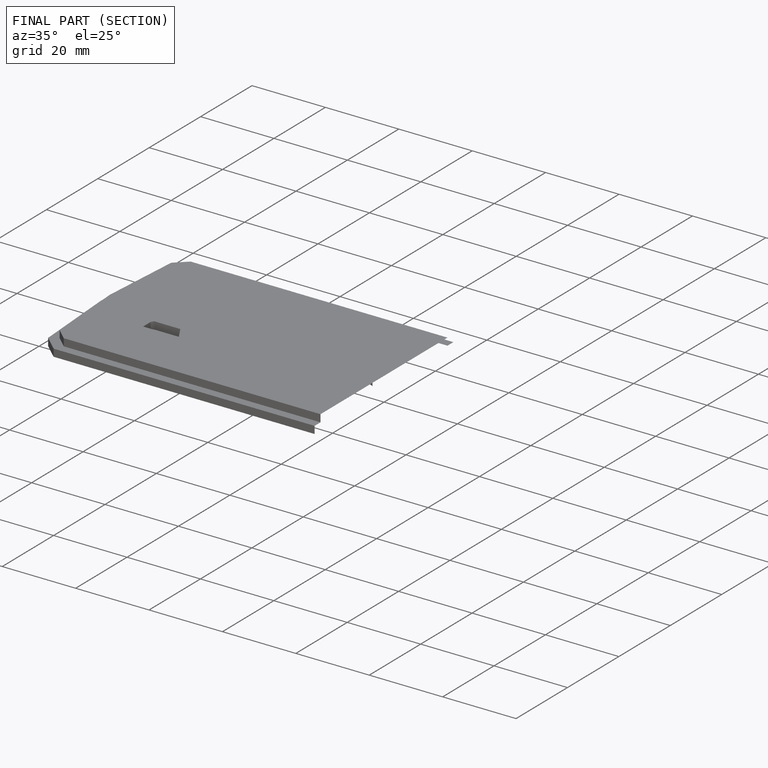
[diagram: finished part — half-section view (interior)]
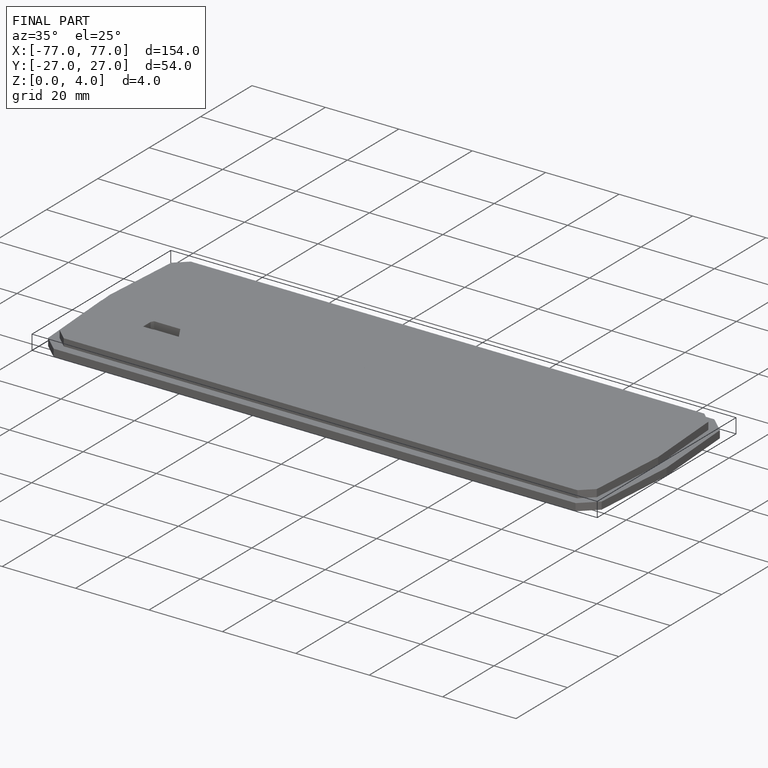
[diagram: finished part — iso view with bounding-box wireframe]
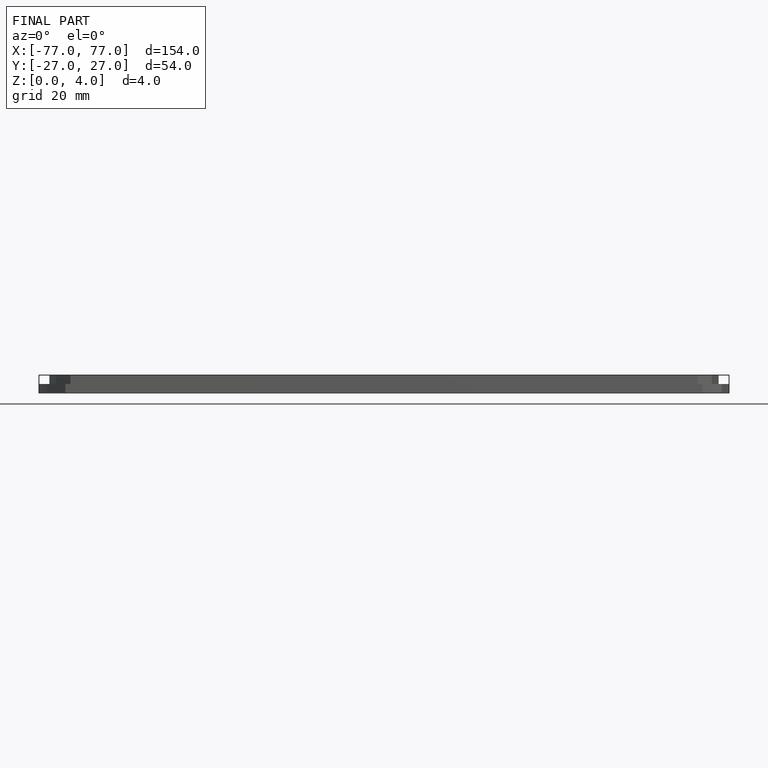
[diagram: finished part — front view with bounding-box wireframe]
